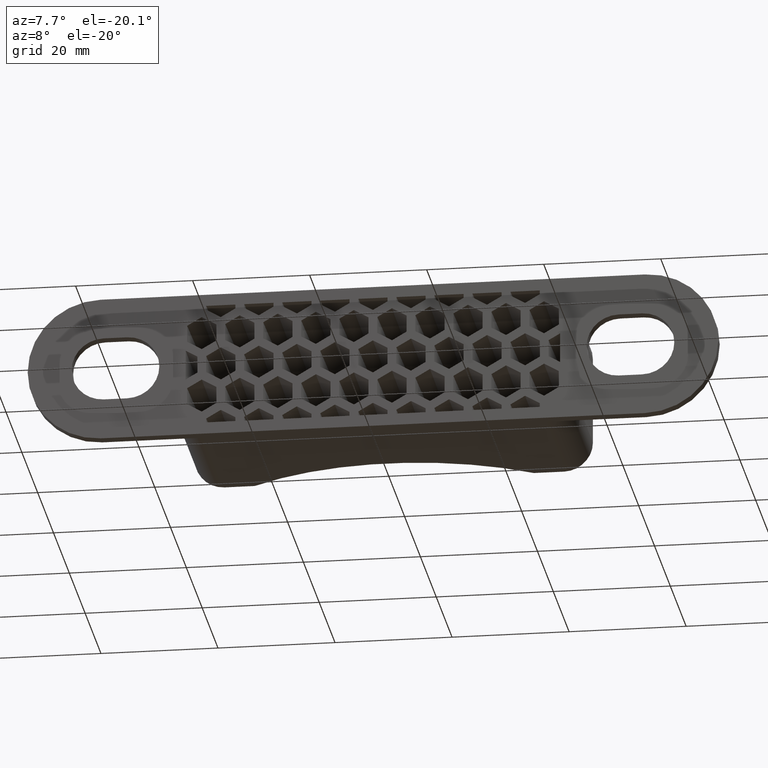
[diagram: clean part render]
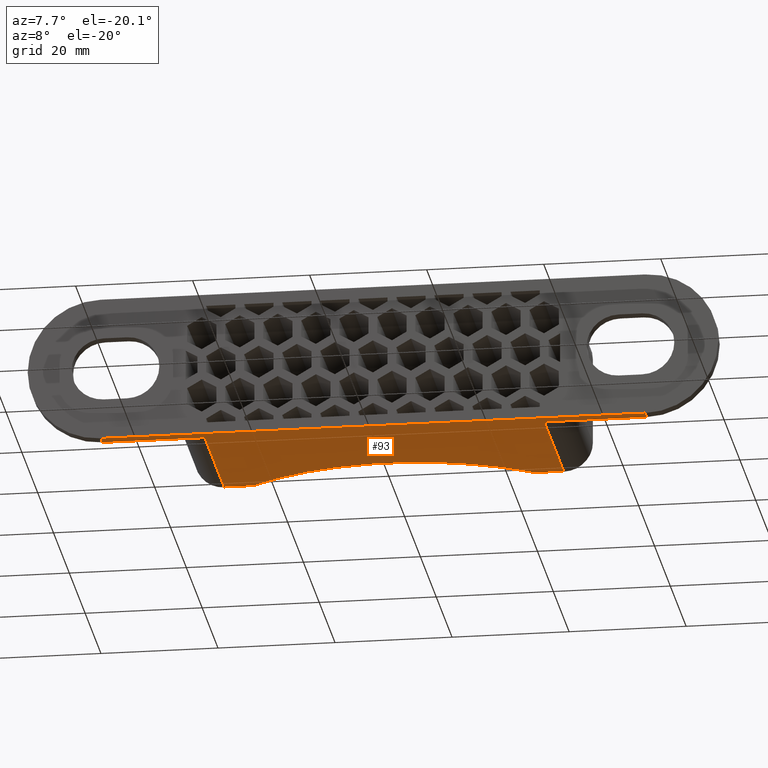
[diagram: same view with one face highlighted and labeled with its STEP entity id]
A machine part, auxiliary view. The second image highlights one B-rep face of the part: STEP entity #93.
In plain terms, the highlighted planar face has unit normal (0, 0, -1).
Its self-contained STEP definition (entity closure, byte-faithful):
#93 = ADVANCED_FACE( '', ( #580 ), #581, .T. );
#580 = FACE_OUTER_BOUND( '', #1462, .T. );
#581 = PLANE( '', #1463 );
#1462 = EDGE_LOOP( '', ( #2702, #2703, #2704, #2705, #2706, #2707, #2708, #2709, #2710, #2711 ) );
#1463 = AXIS2_PLACEMENT_3D( '', #2712, #2713, #2714 );
#2702 = ORIENTED_EDGE( '', *, *, #5950, .T. );
#2703 = ORIENTED_EDGE( '', *, *, #5935, .T. );
#2704 = ORIENTED_EDGE( '', *, *, #5951, .T. );
#2705 = ORIENTED_EDGE( '', *, *, #5952, .T. );
#2706 = ORIENTED_EDGE( '', *, *, #5953, .T. );
#2707 = ORIENTED_EDGE( '', *, *, #5954, .F. );
#2708 = ORIENTED_EDGE( '', *, *, #5955, .T. );
#2709 = ORIENTED_EDGE( '', *, *, #5796, .F. );
#2710 = ORIENTED_EDGE( '', *, *, #5949, .T. );
#2711 = ORIENTED_EDGE( '', *, *, #5956, .F. );
#2712 = CARTESIAN_POINT( '', ( 0.000000000000000, 58.6500000000000, -12.5000000000000 ) );
#2713 = DIRECTION( '', ( 0.000000000000000, 0.000000000000000, -1.00000000000000 ) );
#2714 = DIRECTION( '', ( 0.000000000000000, 1.00000000000000, 0.000000000000000 ) );
#5796 = EDGE_CURVE( '', #7054, #7056, #7057, .T. );
#5935 = EDGE_CURVE( '', #7318, #7323, #7325, .F. );
#5949 = EDGE_CURVE( '', #7054, #7346, #7348, .F. );
#5950 = EDGE_CURVE( '', #7349, #7318, #7350, .F. );
#5951 = EDGE_CURVE( '', #7323, #7351, #7352, .F. );
#5952 = EDGE_CURVE( '', #7351, #7353, #7354, .F. );
#5953 = EDGE_CURVE( '', #7353, #7355, #7356, .F. );
#5954 = EDGE_CURVE( '', #7357, #7355, #7358, .T. );
#5955 = EDGE_CURVE( '', #7357, #7056, #7359, .F. );
#5956 = EDGE_CURVE( '', #7349, #7346, #7360, .T. );
#7054 = VERTEX_POINT( '', #8997 );
#7056 = VERTEX_POINT( '', #8999 );
#7057 = LINE( '', #9000, #9001 );
#7318 = VERTEX_POINT( '', #9386 );
#7323 = VERTEX_POINT( '', #9391 );
#7325 = LINE( '', #9393, #9394 );
#7346 = VERTEX_POINT( '', #9422 );
#7348 = LINE( '', #9424, #9425 );
#7349 = VERTEX_POINT( '', #9426 );
#7350 = LINE( '', #9427, #9428 );
#7351 = VERTEX_POINT( '', #9429 );
#7352 = CIRCLE( '', #9430, 40.1500000000000 );
#7353 = VERTEX_POINT( '', #9431 );
#7354 = LINE( '', #9432, #9433 );
#7355 = VERTEX_POINT( '', #9434 );
#7356 = LINE( '', #9435, #9436 );
#7357 = VERTEX_POINT( '', #9437 );
#7358 = LINE( '', #9438, #9439 );
#7359 = LINE( '', #9440, #9441 );
#7360 = LINE( '', #9442, #9443 );
#8997 = CARTESIAN_POINT( '', ( -46.5000000000000, 0.000000000000000, -12.5000000000000 ) );
#8999 = CARTESIAN_POINT( '', ( 46.5000000000000, 0.000000000000000, -12.5000000000000 ) );
#9000 = CARTESIAN_POINT( '', ( -59.0000000000000, 0.000000000000000, -12.5000000000000 ) );
#9001 = VECTOR( '', #11180, 1000.00000000000 );
#9386 = CARTESIAN_POINT( '', ( -29.0000000000000, 26.5000000000000, -12.5000000000000 ) );
#9391 = CARTESIAN_POINT( '', ( -24.0499480248919, 26.5000000000000, -12.5000000000000 ) );
#9393 = CARTESIAN_POINT( '', ( 0.000000000000000, 26.5000000000000, -12.5000000000000 ) );
#9394 = VECTOR( '', #11347, 1000.00000000000 );
#9422 = CARTESIAN_POINT( '', ( -46.5000000000000, 2.00000000000000, -12.5000000000000 ) );
#9424 = CARTESIAN_POINT( '', ( -46.5000000000000, 58.6500000000000, -12.5000000000000 ) );
#9425 = VECTOR( '', #11373, 1000.00000000000 );
#9426 = CARTESIAN_POINT( '', ( -29.0000000000000, 2.00000000000000, -12.5000000000000 ) );
#9427 = CARTESIAN_POINT( '', ( -29.0000000000000, 58.6500000000000, -12.5000000000000 ) );
#9428 = VECTOR( '', #11374, 1000.00000000000 );
#9429 = CARTESIAN_POINT( '', ( 24.0499480248919, 26.5000000000000, -12.5000000000000 ) );
#9430 = AXIS2_PLACEMENT_3D( '', #11375, #11376, #11377 );
#9431 = CARTESIAN_POINT( '', ( 29.0000000000000, 26.5000000000000, -12.5000000000000 ) );
#9432 = CARTESIAN_POINT( '', ( 0.000000000000000, 26.5000000000000, -12.5000000000000 ) );
#9433 = VECTOR( '', #11378, 1000.00000000000 );
#9434 = CARTESIAN_POINT( '', ( 29.0000000000000, 2.00000000000000, -12.5000000000000 ) );
#9435 = CARTESIAN_POINT( '', ( 29.0000000000000, 58.6500000000000, -12.5000000000000 ) );
#9436 = VECTOR( '', #11379, 1000.00000000000 );
#9437 = CARTESIAN_POINT( '', ( 46.5000000000000, 2.00000000000000, -12.5000000000000 ) );
#9438 = CARTESIAN_POINT( '', ( 59.0000000000000, 2.00000000000000, -12.5000000000000 ) );
#9439 = VECTOR( '', #11380, 1000.00000000000 );
#9440 = CARTESIAN_POINT( '', ( 46.5000000000000, 58.6500000000000, -12.5000000000000 ) );
#9441 = VECTOR( '', #11381, 1000.00000000000 );
#9442 = CARTESIAN_POINT( '', ( -34.0000000000000, 2.00000000000000, -12.5000000000000 ) );
#9443 = VECTOR( '', #11382, 1000.00000000000 );
#11180 = DIRECTION( '', ( 1.00000000000000, 0.000000000000000, 0.000000000000000 ) );
#11347 = DIRECTION( '', ( -1.00000000000000, 0.000000000000000, 0.000000000000000 ) );
#11373 = DIRECTION( '', ( -6.93889390390723E-017, -1.00000000000000, 0.000000000000000 ) );
#11374 = DIRECTION( '', ( -6.93889390390723E-017, -1.00000000000000, 0.000000000000000 ) );
#11375 = CARTESIAN_POINT( '', ( 0.000000000000000, 58.6500000000000, -12.5000000000000 ) );
#11376 = DIRECTION( '', ( 0.000000000000000, 0.000000000000000, -1.00000000000000 ) );
#11377 = DIRECTION( '', ( -1.00000000000000, 0.000000000000000, 0.000000000000000 ) );
#11378 = DIRECTION( '', ( -1.00000000000000, 0.000000000000000, 0.000000000000000 ) );
#11379 = DIRECTION( '', ( 6.93889390390723E-017, 1.00000000000000, 0.000000000000000 ) );
#11380 = DIRECTION( '', ( -1.00000000000000, 0.000000000000000, 0.000000000000000 ) );
#11381 = DIRECTION( '', ( 6.93889390390723E-017, 1.00000000000000, 0.000000000000000 ) );
#11382 = DIRECTION( '', ( -1.00000000000000, 0.000000000000000, 0.000000000000000 ) );